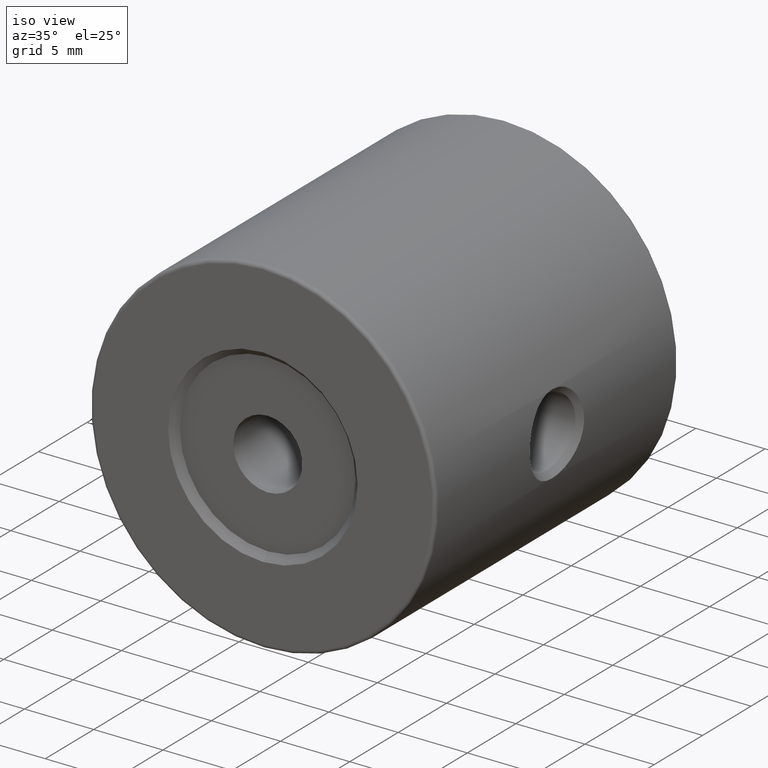
[diagram: clean part render]
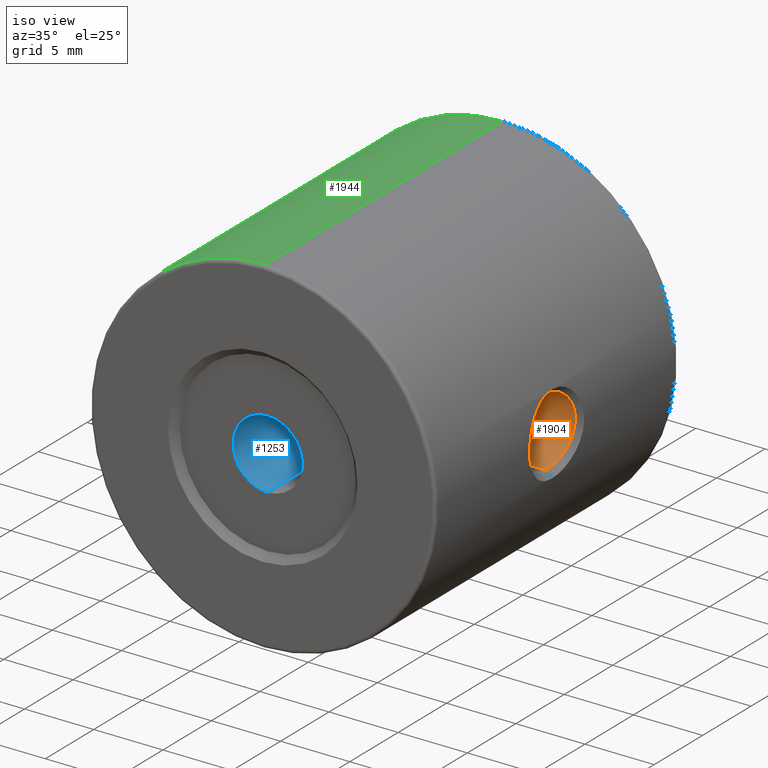
[diagram: same view with three faces highlighted in distinct colors, each labeled with its STEP entity id]
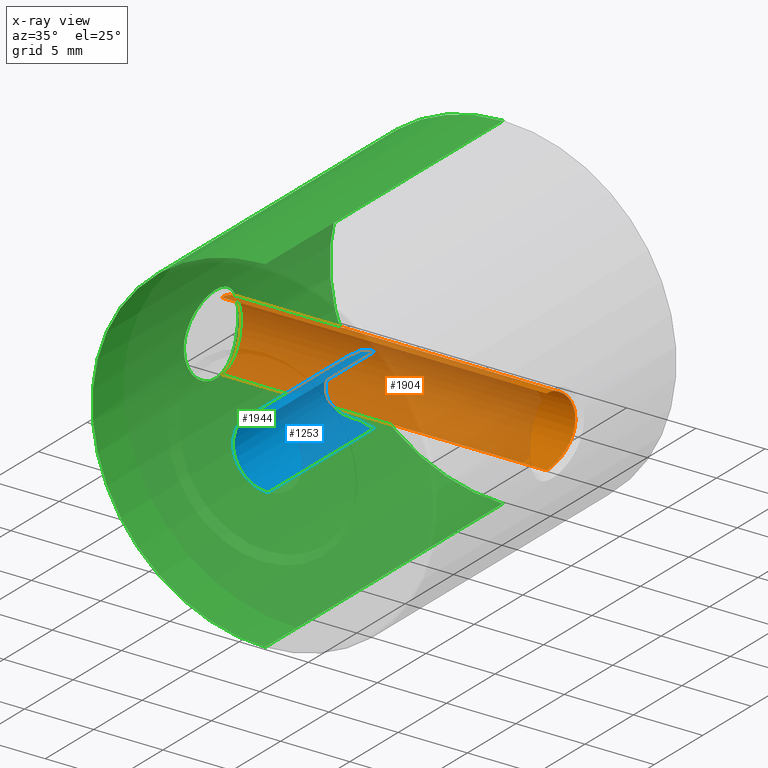
[diagram: x-ray of the same camera — body ghosted, the three highlighted faces saturated]
A machine part, iso view with three faces highlighted in distinct colors.
The next image is the same camera in x-ray (body ghosted, the three faces saturated) — at least one of them is partly hidden behind the body in this view.
Their STEP definitions:

[orange] entity #1904 — the highlighted cylindrical surface (partial cylindrical patch) has radius 2.5 mm, axis along (1, -0, -0).
#1 = CARTESIAN_POINT ( 'NONE',  ( -10.53658929593472138, 3.435006155326634225, 51.45027489283603472 ) ) ;
#12 = CARTESIAN_POINT ( 'NONE',  ( -10.75775277531309015, 1.400772240898692234, 52.49999872986310834 ) ) ;
#14 = CARTESIAN_POINT ( 'NONE',  ( -34.55337786558138191, 3.777108215715299977, 50.76993000480915441 ) ) ;
#15 = CYLINDRICAL_SURFACE ( 'NONE', #771, 2.500000000000002220 ) ;
#18 = CARTESIAN_POINT ( 'NONE',  ( -10.47228985999035089, 3.715187967750090525, 50.93925226523184335 ) ) ;
#36 = CARTESIAN_POINT ( 'NONE',  ( -10.61255753572117477, 3.045764872686626212, 51.88045600329541429 ) ) ;
#53 = CARTESIAN_POINT ( 'NONE',  ( -34.51577102830123067, 3.621698728317633176, 51.14371251332755008 ) ) ;
#56 = CARTESIAN_POINT ( 'NONE',  ( -10.51473777736165083, 3.534110035902946478, 51.29943219385440756 ) ) ;
#72 = CARTESIAN_POINT ( 'NONE',  ( -34.54369817821184796, 3.738018949567921023, 49.11913398801507924 ) ) ;
#75 = CARTESIAN_POINT ( 'NONE',  ( -10.53178313108949915, 3.457167416195394249, 51.41852374674527226 ) ) ;
#86 = CARTESIAN_POINT ( 'NONE',  ( -34.52236465314182112, 3.649729440710959505, 51.08800073522379392 ) ) ;
#88 = CARTESIAN_POINT ( 'NONE',  ( -34.52017690343055989, 3.640382294756729031, 48.89397580371844754 ) ) ;
#105 = CARTESIAN_POINT ( 'NONE',  ( -34.46584608861564902, 3.397542947977711059, 48.49891677664255951 ) ) ;
#120 = CARTESIAN_POINT ( 'NONE',  ( -10.75775312484085866, 1.398672224646476892, 52.50000000000002132 ) ) ;
#123 = CARTESIAN_POINT ( 'NONE',  ( -10.61969784651963700, 3.004503414530196537, 51.91573604598293201 ) ) ;
#141 = CARTESIAN_POINT ( 'NONE',  ( -10.72594683895604284, 2.168530309213374530, 52.37874403320898153 ) ) ;
#159 = CARTESIAN_POINT ( 'NONE',  ( -34.36439915012190482, 2.842708138876384627, 47.95936680339814728 ) ) ;
#162 = CARTESIAN_POINT ( 'NONE',  ( -10.67160018275315103, 2.665846511305314248, 52.15490737904902829 ) ) ;
#167 = ORIENTED_EDGE ( 'NONE', *, *, #2491, .T. ) ;
#177 = CARTESIAN_POINT ( 'NONE',  ( -34.25265052839080226, 1.398252184769063433, 52.50000002275201183 ) ) ;
#178 = CARTESIAN_POINT ( 'NONE',  ( -34.37590333120726172, 2.915794773481749314, 48.01286234900273087 ) ) ;
#199 = CARTESIAN_POINT ( 'NONE',  ( -10.69234182700365388, 2.502332762323333348, 47.75691348780209466 ) ) ;
#210 = CARTESIAN_POINT ( 'NONE',  ( -34.32972789659181245, 2.597037757422558268, 47.80606120173059992 ) ) ;
#214 = CARTESIAN_POINT ( 'NONE',  ( -34.25372203042129371, 1.560659625607133005, 52.49606844198029876 ) ) ;
#217 = CARTESIAN_POINT ( 'NONE',  ( -10.55978731339790322, 3.324144027088045572, 48.40596271062980804 ) ) ;
#229 = CARTESIAN_POINT ( 'NONE',  ( -34.35854923057382138, 2.804111315475371402, 47.93272002937693088 ) ) ;
#234 = CARTESIAN_POINT ( 'NONE',  ( -10.64511971509587163, 2.848657792398832100, 47.96333552459012850 ) ) ;
#250 = CARTESIAN_POINT ( 'NONE',  ( -34.41613788108610805, 3.147235597055346723, 51.78654533557758555 ) ) ;
#252 = CARTESIAN_POINT ( 'NONE',  ( -10.71238521261723520, 2.317432552050751937, 47.67501877044571046 ) ) ;
#268 = CARTESIAN_POINT ( 'NONE',  ( -10.62573172583954140, 2.968816210442954073, 48.05490762729050402 ) ) ;
#285 = CARTESIAN_POINT ( 'NONE',  ( -34.49285213742677314, 3.521659789324874446, 51.32016033935436639 ) ) ;
#288 = CARTESIAN_POINT ( 'NONE',  ( -10.52215786201730552, 3.500899096535798893, 51.35240099877466236 ) ) ;
#302 = CARTESIAN_POINT ( 'NONE',  ( -34.50880725685797046, 3.591694377612786315, 51.19969144280686635 ) ) ;
#306 = CARTESIAN_POINT ( 'NONE',  ( -10.43648446060348611, 3.858052394323864487, 50.44832193573772372 ) ) ;
#325 = CARTESIAN_POINT ( 'NONE',  ( -10.49467356482373681, 3.621523676001464853, 48.85594951957698839 ) ) ;
#337 = EDGE_CURVE ( 'NONE', #3402, #1257, #1572, .T. ) ;
#344 = CARTESIAN_POINT ( 'NONE',  ( -10.47640660499211940, 3.698224077249327113, 49.01991178301092589 ) ) ;
#358 = CARTESIAN_POINT ( 'NONE',  ( -10.48205551590016604, 3.674751804888622519, 48.96658403328918041 ) ) ;
#372 = CARTESIAN_POINT ( 'NONE',  ( -34.48798181167035182, 3.499709095062192521, 48.64575056965225031 ) ) ;
#374 = CARTESIAN_POINT ( 'NONE',  ( -10.67850231187596499, 2.613847822169839130, 52.18465594208841907 ) ) ;
#387 = CARTESIAN_POINT ( 'NONE',  ( -10.75775311712865445, 1.398252184769388951, 47.50000000000000000 ) ) ;
#408 = CARTESIAN_POINT ( 'NONE',  ( -10.75775306594705150, 1.399512273949568009, 52.49999978827980129 ) ) ;
#411 = CARTESIAN_POINT ( 'NONE',  ( -10.64573901249762855, 2.844430916668417186, 52.03941283699982989 ) ) ;
#425 = CARTESIAN_POINT ( 'NONE',  ( -10.75775289145710367, 1.400352262137122272, 52.49999915321134125 ) ) ;
#426 = CARTESIAN_POINT ( 'NONE',  ( -34.57893418755334380, 3.877465556909782674, 49.67562903278920317 ) ) ;
#429 = CARTESIAN_POINT ( 'NONE',  ( -10.62192216117861676, 2.991433434158972116, 51.92659701926658045 ) ) ;
#444 = CARTESIAN_POINT ( 'NONE',  ( -34.28731963629589075, 2.202316232205860036, 47.63248163846129302 ) ) ;
#459 = CARTESIAN_POINT ( 'NONE',  ( -34.35764467379194542, 2.798077697894730598, 47.92862186135381108 ) ) ;
#462 = CARTESIAN_POINT ( 'NONE',  ( -34.25828129528734678, 1.724039373447704859, 52.47902595956330885 ) ) ;
#476 = CARTESIAN_POINT ( 'NONE',  ( -34.43261872419688530, 3.233925465060507154, 48.30269162639008584 ) ) ;
#482 = CARTESIAN_POINT ( 'NONE',  ( -10.59815998889524558, 3.126107226020917285, 48.19304052234530644 ) ) ;
#495 = CARTESIAN_POINT ( 'NONE',  ( -34.38777286731758664, 2.987249506305629687, 48.06995074308373006 ) ) ;
#499 = CARTESIAN_POINT ( 'NONE',  ( -34.39480158161857304, 3.028510403209743185, 51.89576953602850296 ) ) ;
#502 = CARTESIAN_POINT ( 'NONE',  ( -10.53590965403808610, 3.438070091881015422, 48.55438621982123948 ) ) ;
#514 = CARTESIAN_POINT ( 'NONE',  ( -34.33624370788929525, 2.646806170903147404, 47.83401143112892129 ) ) ;
#517 = CARTESIAN_POINT ( 'NONE',  ( -34.37712870115655761, 2.923183177069705874, 51.98126396674344818 ) ) ;
#519 = CARTESIAN_POINT ( 'NONE',  ( -10.75775311712865623, 1.478895169680614075, 47.50000000000000711 ) ) ;
#534 = CARTESIAN_POINT ( 'NONE',  ( -34.29807699724858594, 2.318030296329272488, 52.32474586825979657 ) ) ;
#536 = CARTESIAN_POINT ( 'NONE',  ( -10.62827805860822572, 2.953539933339903722, 48.04262997200537200 ) ) ;
#556 = CARTESIAN_POINT ( 'NONE',  ( -10.46126713321734591, 3.760105976176915110, 50.82135131906920833 ) ) ;
#575 = CARTESIAN_POINT ( 'NONE',  ( -10.58375804988684976, 3.202955632804679542, 51.73020071059019642 ) ) ;
#586 = VERTEX_POINT ( 'NONE', #177 ) ;
#589 = CARTESIAN_POINT ( 'NONE',  ( -34.45748932519276053, 3.357772379174664756, 51.55315505963010025 ) ) ;
#592 = CARTESIAN_POINT ( 'NONE',  ( -10.54830106101549170, 3.379792021149554682, 51.52456859440680148 ) ) ;
#605 = CARTESIAN_POINT ( 'NONE',  ( -34.44657920401198226, 3.304266349219735055, 51.61777152094342824 ) ) ;
#608 = CARTESIAN_POINT ( 'NONE',  ( -10.61497147234010363, 3.031921984396925396, 51.89245589269300041 ) ) ;
#622 = CARTESIAN_POINT ( 'NONE',  ( -34.58436337322496001, 3.898250868283255066, 50.00256562447480491 ) ) ;
#623 = CARTESIAN_POINT ( 'NONE',  ( -34.55377552792147355, 3.778695768193335969, 49.23508877299096298 ) ) ;
#625 = CARTESIAN_POINT ( 'NONE',  ( -10.55675560199588503, 3.338960214639970392, 51.57597055683756793 ) ) ;
#637 = CARTESIAN_POINT ( 'NONE',  ( -34.58436337322496001, 3.898250868283255066, 50.00256562447480491 ) ) ;
#651 = CARTESIAN_POINT ( 'NONE',  ( -34.53799626503341358, 3.714705747835725269, 49.05955801837989583 ) ) ;
#672 = CARTESIAN_POINT ( 'NONE',  ( -34.45342034665506503, 3.337851177785145396, 48.42266475108284141 ) ) ;
#675 = CARTESIAN_POINT ( 'NONE',  ( -10.62866622019876495, 2.951544250994884155, 51.95942332555384269 ) ) ;
#694 = CARTESIAN_POINT ( 'NONE',  ( -10.65923473107763186, 2.754486190467200224, 52.10060455302391347 ) ) ;
#709 = CARTESIAN_POINT ( 'NONE',  ( -34.32261253375742882, 2.540665696718634514, 47.77588027149432293 ) ) ;
#711 = CARTESIAN_POINT ( 'NONE',  ( -10.68758540392553513, 2.542342441979126288, 52.22325597180674350 ) ) ;
#726 = CARTESIAN_POINT ( 'NONE',  ( -34.25265054498071038, 1.398252184769378959, 47.49999999999540989 ) ) ;
#731 = CARTESIAN_POINT ( 'NONE',  ( -10.57782312027836547, 3.233863439075777446, 48.30230010735316881 ) ) ;
#732 = ORIENTED_EDGE ( 'NONE', *, *, #2952, .T. ) ;
#742 = CARTESIAN_POINT ( 'NONE',  ( -34.44820663197441490, 3.312372979312022458, 48.39158897223911993 ) ) ;
#745 = CARTESIAN_POINT ( 'NONE',  ( -34.26149993960300577, 1.805777567640896031, 52.46690698300748323 ) ) ;
#756 = B_SPLINE_CURVE_WITH_KNOTS ( 'NONE', 3,
 ( #2643, #519, #2696, #1625, #3168, #3504, #2903, #2152, #803, #1326, #1813, #1360, #252, #1608, #1555, #2133, #199, #765, #1289, #1073, #2711, #3241, #1885, #2369, #3468, #2440, #3451, #234, #2976, #1020, #536, #268, #1309, #1001, #1591, #3486, #2099, #1342, #2115, #482, #2420, #2081, #731, #1573, #3185, #1830, #2921, #2660, #217, #2388, #1036, #3203, #1847, #502, #3223, #784, #1867, #2959, #2780, #1089, #2459, #3045, #2760, #325, #1642, #358, #1676, #344, #897, #2499, #1431, #2209, #1976, #3293, #863, #1377, #1125, #1449, #2225, #2170, #3257, #306, #821, #1161, #1413, #1901, #2993, #556, #2795, #3312, #18, #3028, #1711, #1143, #1921, #3329, #2517, #1394, #56, #880, #288, #1940, #2728, #75, #1, #2241, #592, #3064, #1106, #625, #2188, #3273, #841, #1958, #3010, #575, #1659, #2743, #2477, #36, #608, #1694, #123, #2005, #429, #1179, #2814, #675, #3362, #2258, #411, #3148, #1516, #2062, #694, #2604, #162, #2586, #374, #1776, #711, #2290, #2331, #1499, #2551, #1252, #2310, #3377, #141, #3345, #3093, #1725, #1194, #2883, #3396, #1231 ),
 .UNSPECIFIED., .F., .F.,
 ( 4, 2, 2, 2, 2, 1, 2, 2, 1, 2, 2, 2, 1, 2, 2, 2, 1, 1, 1, 2, 2, 2, 2, 2, 2, 2, 1, 2, 2, 2, 1, 2, 2, 2, 2, 2, 1, 2, 2, 2, 2, 2, 2, 2, 2, 2, 2, 2, 1, 2, 2, 1, 2, 2, 2, 1, 2, 2, 2, 1, 1, 2, 2, 2, 2, 2, 2, 2, 1, 1, 2, 2, 2, 1, 2, 2, 2, 2, 2, 1, 2, 2, 2, 2, 2, 2, 4 ),
 ( 0.0000000000000000000, 0.01562499999998637548, 0.03124999999997275096, 0.03906249999996606881, 0.04687499999995938665, 0.05468749999995271144, 0.05859374999994931832, 0.06249999999994591826, 0.07031249999993867406, 0.07421874999993476052, 0.07812499999993083311, 0.08593749999992232602, 0.08984374999991839861, 0.09179687499991648347, 0.09374999999991458222, 0.1015624999999077821, 0.1054687499999043820, 0.1074218749999027167, 0.1083984374999022171, 0.1088867187499016342, 0.1093749999999010653, 0.1171874999999044098, 0.1210937499999056449, 0.1249999999999068800, 0.1328124999999100442, 0.1367187499999115985, 0.1386718749999117373, 0.1396484374999111822, 0.1406249999999105993, 0.1484374999999043265, 0.1523437499999006906, 0.1542968749998994138, 0.1562499999998981093, 0.1640624999998949174, 0.1679687499998932798, 0.1718749999998916422, 0.1796874999998895328, 0.1835937499998878952, 0.1874999999998862577, 0.1953124999998841482, 0.2031249999998820666, 0.2187499999998778477, 0.2499999999998681055, 0.2656249999998632760, 0.2734374999998608335, 0.2812499999998583911, 0.2890624999998559486, 0.2968749999998535616, 0.3046874999998511191, 0.3085937499998505085, 0.3124999999998498423, 0.3203124999998499534, 0.3242187499998505085, 0.3281249999998511191, 0.3359374999998522848, 0.3398437499998534506, 0.3417968749998534506, 0.3437499999998534506, 0.3515624999998558375, 0.3554687499998564482, 0.3574218749998572808, 0.3583984374998581135, 0.3593749999998590017, 0.3671874999998632205, 0.3710937499998653855, 0.3749999999998674949, 0.3828124999998712696, 0.3867187499998730460, 0.3886718749998734901, 0.3896484374998742117, 0.3901367187498746558, 0.3906249999998750444, 0.3984374999998823719, 0.4023437499998864797, 0.4042968749998889777, 0.4062499999998915312, 0.4140624999999001354, 0.4179687499999047984, 0.4218749999999094058, 0.4296874999999186762, 0.4335937499999233946, 0.4374999999999281131, 0.4453124999999370504, 0.4531249999999459876, 0.4609374999999549805, 0.4687499999999639178, 0.5000000000000000000 ),
 .UNSPECIFIED. ) ;
#760 = CARTESIAN_POINT ( 'NONE',  ( -34.36814239115046377, 2.866752692583888873, 47.97665644373223870 ) ) ;
#765 = CARTESIAN_POINT ( 'NONE',  ( -10.68788471831998876, 2.539433060992924318, 47.77555911953638912 ) ) ;
#771 = AXIS2_PLACEMENT_3D ( 'NONE', #2514, #2438, #2741 ) ;
#777 = CARTESIAN_POINT ( 'NONE',  ( -34.38819594421737236, 2.989748358730691447, 48.07201074944931918 ) ) ;
#784 = CARTESIAN_POINT ( 'NONE',  ( -10.53001865074880428, 3.465178259728424415, 48.59361952037760091 ) ) ;
#803 = CARTESIAN_POINT ( 'NONE',  ( -10.73230878014613943, 2.087230713269383919, 47.59648392039453313 ) ) ;
#821 = CARTESIAN_POINT ( 'NONE',  ( -10.44050617183825658, 3.842400022360676903, 50.52702085061759618 ) ) ;
#837 = CARTESIAN_POINT ( 'NONE',  ( -34.56756822307433197, 3.833332788819759696, 50.57206592070166096 ) ) ;
#841 = CARTESIAN_POINT ( 'NONE',  ( -10.56657809085663402, 3.290784664091236156, 51.63401304755026899 ) ) ;
#858 = CARTESIAN_POINT ( 'NONE',  ( -34.42657149363610358, 3.202853141483528621, 51.73094316403741999 ) ) ;
#863 = CARTESIAN_POINT ( 'NONE',  ( -10.43026627197695433, 3.882253059674059426, 49.67256777598407069 ) ) ;
#877 = CARTESIAN_POINT ( 'NONE',  ( -34.50000485385447746, 3.553290457803862878, 51.26737162502899992 ) ) ;
#880 = CARTESIAN_POINT ( 'NONE',  ( -10.51837359182651888, 3.517933571058198261, 51.32579008398895581 ) ) ;
#895 = CARTESIAN_POINT ( 'NONE',  ( -34.58023691178213710, 3.882480711100935178, 49.71662314764943602 ) ) ;
#897 = CARTESIAN_POINT ( 'NONE',  ( -10.47051593469744724, 3.722504065064466516, 49.07824749847952006 ) ) ;
#911 = CARTESIAN_POINT ( 'NONE',  ( -34.50695619509281187, 3.583718661823267038, 48.78542191980041309 ) ) ;
#926 = CARTESIAN_POINT ( 'NONE',  ( -34.57390506594117596, 3.857997678078226578, 49.55136306853460582 ) ) ;
#945 = CARTESIAN_POINT ( 'NONE',  ( -34.45699076149889351, 3.355189985241224804, 48.44417053961495156 ) ) ;
#950 = VECTOR ( 'NONE', #2186, 1000.000000000000000 ) ;
#964 = CARTESIAN_POINT ( 'NONE',  ( -34.58436337322496001, 3.898250868283255066, 50.00256562447480491 ) ) ;
#997 = CARTESIAN_POINT ( 'NONE',  ( -34.39518996595738543, 3.030528576685263875, 48.10634144176987803 ) ) ;
#1001 = CARTESIAN_POINT ( 'NONE',  ( -10.62388814465176168, 2.979798253939118791, 48.06383882973953092 ) ) ;
#1014 = CARTESIAN_POINT ( 'NONE',  ( -34.36086175259308106, 2.819442343512391425, 47.94322949626830166 ) ) ;
#1020 = CARTESIAN_POINT ( 'NONE',  ( -10.63324832098946615, 2.923347842217401293, 48.01886132538962926 ) ) ;
#1034 = CARTESIAN_POINT ( 'NONE',  ( -34.32269212778913925, 2.540851447446065947, 52.22371342458428245 ) ) ;
#1036 = CARTESIAN_POINT ( 'NONE',  ( -10.55296637922095115, 3.357524876358701782, 48.44652055317448003 ) ) ;
#1048 = CARTESIAN_POINT ( 'NONE',  ( -34.26995450286284495, 1.966833508878385040, 47.56517006760056177 ) ) ;
#1051 = CARTESIAN_POINT ( 'NONE',  ( -34.27508428324641443, 2.045357825997798695, 52.41514413048619048 ) ) ;
#1073 = CARTESIAN_POINT ( 'NONE',  ( -10.67898984605596091, 2.610437434575099136, 47.81320628337162049 ) ) ;
#1086 = CARTESIAN_POINT ( 'NONE',  ( -34.33608617813745667, 2.645985465630450673, 52.16675172971824281 ) ) ;
#1089 = CARTESIAN_POINT ( 'NONE',  ( -10.51036542385616812, 3.553437408739181347, 48.73288016722053584 ) ) ;
#1103 = CARTESIAN_POINT ( 'NONE',  ( -34.50232215743842801, 3.563461913632058220, 51.24990526178648764 ) ) ;
#1106 = CARTESIAN_POINT ( 'NONE',  ( -10.55531889802341183, 3.345944087701068881, 51.56733120446111229 ) ) ;
#1125 = CARTESIAN_POINT ( 'NONE',  ( -10.42602248527437503, 3.898315734512980413, 50.07909685307397041 ) ) ;
#1143 = CARTESIAN_POINT ( 'NONE',  ( -10.49003806497988833, 3.641181918001433093, 51.10440038306784061 ) ) ;
#1161 = CARTESIAN_POINT ( 'NONE',  ( -10.44277018625809639, 3.833558039652739335, 50.56652604505660520 ) ) ;
#1166 = EDGE_CURVE ( 'NONE', #2510, #1362, #3258, .T. ) ;
#1177 = CARTESIAN_POINT ( 'NONE',  ( -34.51575700200420016, 3.621574355383758714, 48.85663851799758817 ) ) ;
#1179 = CARTESIAN_POINT ( 'NONE',  ( -10.62234100687279437, 2.988962205874714950, 51.92863791231237514 ) ) ;
#1192 = CARTESIAN_POINT ( 'NONE',  ( -34.46186240356259134, 3.378645102126074828, 48.47394285503958855 ) ) ;
#1194 = CARTESIAN_POINT ( 'NONE',  ( -10.74262275664474053, 1.930177161206423353, 52.44310909606979010 ) ) ;
#1231 = CARTESIAN_POINT ( 'NONE',  ( -10.75775277531309015, 1.400772240898692234, 52.49999872986310834 ) ) ;
#1250 = CARTESIAN_POINT ( 'NONE',  ( -34.43552205039608793, 3.248773438833176375, 48.31893139304249019 ) ) ;
#1252 = CARTESIAN_POINT ( 'NONE',  ( -10.71220122383512319, 2.319907301163726565, 52.32428643419788017 ) ) ;
#1257 = VERTEX_POINT ( 'NONE', #2268 ) ;
#1266 = CARTESIAN_POINT ( 'NONE',  ( -34.33858617187294726, 2.664240156161630679, 47.84414879106505225 ) ) ;
#1282 = CARTESIAN_POINT ( 'NONE',  ( -34.42332169514734375, 3.185531405363365653, 48.25173542476589006 ) ) ;
#1286 = CARTESIAN_POINT ( 'NONE',  ( -34.38425514537565419, 2.966316391689008736, 51.94710199271663242 ) ) ;
#1289 = CARTESIAN_POINT ( 'NONE',  ( -10.68536135105406792, 2.559892940763631053, 47.78618977467668572 ) ) ;
#1305 = CARTESIAN_POINT ( 'NONE',  ( -34.35488893522820320, 2.779496485291727659, 52.08380567105832171 ) ) ;
#1309 = CARTESIAN_POINT ( 'NONE',  ( -10.62462732574339164, 2.975400541801445975, 48.06025488632096199 ) ) ;
#1320 = CARTESIAN_POINT ( 'NONE',  ( -34.30394296115250086, 2.375711128245743708, 47.69891051549689109 ) ) ;
#1326 = CARTESIAN_POINT ( 'NONE',  ( -10.72636834715719800, 2.163316367278158125, 47.61960974747873365 ) ) ;
#1342 = CARTESIAN_POINT ( 'NONE',  ( -10.60750994316161666, 3.074333090331054841, 48.14496214669802754 ) ) ;
#1357 = CARTESIAN_POINT ( 'NONE',  ( -34.27804580035405735, 2.086575151996896693, 52.40370738585250621 ) ) ;
#1360 = CARTESIAN_POINT ( 'NONE',  ( -10.71611989040700585, 2.278727290038249365, 47.66008678486208794 ) ) ;
#1362 = VERTEX_POINT ( 'NONE', #387 ) ;
#1374 = CARTESIAN_POINT ( 'NONE',  ( -34.56256781750949614, 3.813732364840567435, 50.64996031630849416 ) ) ;
#1377 = CARTESIAN_POINT ( 'NONE',  ( -10.42607548033009657, 3.898122724173477938, 49.83585510696210008 ) ) ;
#1379 = EDGE_LOOP ( 'NONE', ( #1523, #1932, #167, #3506, #732, #3031 ) ) ;
#1394 = CARTESIAN_POINT ( 'NONE',  ( -10.50766408939979257, 3.565365691849903929, 51.24710472460241562 ) ) ;
#1413 = CARTESIAN_POINT ( 'NONE',  ( -10.44780453270269049, 3.813763724046194348, 50.64573242924388552 ) ) ;
#1427 = CARTESIAN_POINT ( 'NONE',  ( -34.45094144038500872, 3.325738783183400660, 51.59211394682576213 ) ) ;
#1431 = CARTESIAN_POINT ( 'NONE',  ( -10.45998422922923154, 3.765243383561329704, 49.19437025681892806 ) ) ;
#1444 = CARTESIAN_POINT ( 'NONE',  ( -34.48781591890710274, 3.499084047547301957, 51.35587356931377911 ) ) ;
#1446 = CARTESIAN_POINT ( 'NONE',  ( -34.53249561006611401, 3.692039406730776019, 49.00496577801974496 ) ) ;
#1449 = CARTESIAN_POINT ( 'NONE',  ( -10.42705158325908243, 3.894432946978842569, 50.16070950317541843 ) ) ;
#1462 = CARTESIAN_POINT ( 'NONE',  ( -34.48542199940760611, 3.488133907627409158, 48.62795515748260300 ) ) ;
#1480 = CARTESIAN_POINT ( 'NONE',  ( -34.58335677791711760, 3.894452884664744818, 49.83950915355686817 ) ) ;
#1499 = CARTESIAN_POINT ( 'NONE',  ( -10.70443588610295116, 2.394827889974890045, 52.29286643723208527 ) ) ;
#1513 = CARTESIAN_POINT ( 'NONE',  ( -10.75775312123389682, 1.398252184769396056, 52.49999999860907707 ) ) ;
#1514 = CARTESIAN_POINT ( 'NONE',  ( -34.54901993731348142, 3.759636630981272098, 49.17730288338823641 ) ) ;
#1516 = CARTESIAN_POINT ( 'NONE',  ( -10.65159541338161020, 2.805837286584337065, 52.06610518278517219 ) ) ;
#1522 = VECTOR ( 'NONE', #3339, 1000.000000000000000 ) ;
#1523 = ORIENTED_EDGE ( 'NONE', *, *, #2168, .F. ) ;
#1533 = CARTESIAN_POINT ( 'NONE',  ( -34.27801529105191491, 2.086261137826711298, 47.59617280642536485 ) ) ;
#1549 = CARTESIAN_POINT ( 'NONE',  ( -34.25265054498071038, 1.398252184769378959, 47.49999999999540989 ) ) ;
#1552 = CARTESIAN_POINT ( 'NONE',  ( -34.26991302517363636, 1.966150412366024502, 52.43498634185579022 ) ) ;
#1555 = CARTESIAN_POINT ( 'NONE',  ( -10.70476268514649121, 2.392250165626945702, 47.70577093960293524 ) ) ;
#1566 = CARTESIAN_POINT ( 'NONE',  ( -34.38884296433702303, 2.993564852752338190, 48.07516311317973390 ) ) ;
#1569 = CARTESIAN_POINT ( 'NONE',  ( -34.26758693008573431, 1.926671815424718215, 52.44384497077900420 ) ) ;
#1572 = B_SPLINE_CURVE_WITH_KNOTS ( 'NONE', 3,
 ( #2362, #425, #408, #120, #1513 ),
 .UNSPECIFIED., .F., .F.,
 ( 4, 1, 4 ),
 ( 0.5000000000000000000, 0.5000808699276416691, 0.5001617398552833382 ),
 .UNSPECIFIED. ) ;
#1573 = CARTESIAN_POINT ( 'NONE',  ( -10.56979142712622455, 3.274545867626841300, 48.34774837985354878 ) ) ;
#1586 = CARTESIAN_POINT ( 'NONE',  ( -34.34582147387619955, 2.716998223988638106, 47.87571452032739217 ) ) ;
#1589 = CARTESIAN_POINT ( 'NONE',  ( -34.40292642917790999, 3.074516548038075836, 51.85487433066689533 ) ) ;
#1591 = CARTESIAN_POINT ( 'NONE',  ( -10.62334915145952863, 2.982996198437806168, 48.06645691304566981 ) ) ;
#1606 = CARTESIAN_POINT ( 'NONE',  ( -34.38208088998037226, 2.953269912434114186, 51.95758413944095366 ) ) ;
#1608 = CARTESIAN_POINT ( 'NONE',  ( -10.71030778668220051, 2.338251845968980724, 47.68336874344998932 ) ) ;
#1623 = CARTESIAN_POINT ( 'NONE',  ( -34.30016066776104111, 2.338896842652930630, 52.31637011544876259 ) ) ;
#1625 = CARTESIAN_POINT ( 'NONE',  ( -10.75242780081261174, 1.722847840886650994, 47.51981399015357965 ) ) ;
#1639 = CARTESIAN_POINT ( 'NONE',  ( -34.44970727494351337, 3.319682574710927980, 51.59941220978912924 ) ) ;
#1642 = CARTESIAN_POINT ( 'NONE',  ( -10.48808776788176367, 3.649523439088665278, 48.91157680470856661 ) ) ;
#1659 = CARTESIAN_POINT ( 'NONE',  ( -10.58680048196472256, 3.187015570641586137, 51.74674765687403521 ) ) ;
#1673 = CARTESIAN_POINT ( 'NONE',  ( -34.55037290243139836, 3.765055916461096608, 50.80616473617288165 ) ) ;
#1676 = CARTESIAN_POINT ( 'NONE',  ( -10.47815702457030440, 3.690975689957600725, 49.00309578724267112 ) ) ;
#1688 = EDGE_CURVE ( 'NONE', #586, #2319, #2347, .T. ) ;
#1694 = CARTESIAN_POINT ( 'NONE',  ( -10.61818952971818319, 3.013288210498589414, 51.90833047861152494 ) ) ;
#1711 = CARTESIAN_POINT ( 'NONE',  ( -10.48362473782626303, 3.668293309218001674, 51.04873908171499863 ) ) ;
#1725 = CARTESIAN_POINT ( 'NONE',  ( -10.74033125497380148, 1.968770040965731605, 52.43437863031153512 ) ) ;
#1774 = CARTESIAN_POINT ( 'NONE',  ( -34.58438561327193383, 3.898334264179342146, 49.92130290170502604 ) ) ;
#1776 = CARTESIAN_POINT ( 'NONE',  ( -10.68047853276402570, 2.598575359166927612, 52.19309750927961744 ) ) ;
#1791 = CARTESIAN_POINT ( 'NONE',  ( -34.39761002006302704, 3.044417719575021941, 48.11836436477278056 ) ) ;
#1813 = CARTESIAN_POINT ( 'NONE',  ( -10.72153079176783486, 2.220792733291343968, 47.63856652003732961 ) ) ;
#1825 = CARTESIAN_POINT ( 'NONE',  ( -34.40566408765987916, 3.090010174784834529, 48.15891080330843010 ) ) ;
#1827 = CARTESIAN_POINT ( 'NONE',  ( -34.31168622883786412, 2.447977223187536744, 52.26958429966892083 ) ) ;
#1830 = CARTESIAN_POINT ( 'NONE',  ( -10.56391064306462368, 3.303839945411627177, 48.38172606697145994 ) ) ;
#1845 = CARTESIAN_POINT ( 'NONE',  ( -34.25264969898023537, 1.479168739983915293, 52.50000000000001421 ) ) ;
#1847 = CARTESIAN_POINT ( 'NONE',  ( -10.53966556760309459, 3.420558592488067262, 48.53006894739305466 ) ) ;
#1862 = CARTESIAN_POINT ( 'NONE',  ( -34.38144323524463886, 2.949763339004216167, 48.03916816233313369 ) ) ;
#1865 = CARTESIAN_POINT ( 'NONE',  ( -34.35078610549842182, 2.751384864681336584, 52.10217632155296741 ) ) ;
#1867 = CARTESIAN_POINT ( 'NONE',  ( -10.52907118884673565, 3.469515327544006933, 48.60000513654498633 ) ) ;
#1885 = CARTESIAN_POINT ( 'NONE',  ( -10.66355808636940061, 2.724000046128503882, 47.88028934360172428 ) ) ;
#1899 = LINE ( 'NONE', #2456, #950 ) ;
#1901 = CARTESIAN_POINT ( 'NONE',  ( -10.45068180356089727, 3.802385365944963347, 50.68683908686955419 ) ) ;
#1904 = ADVANCED_FACE ( 'NONE', ( #3310 ), #15, .F. ) ;
#1918 = CARTESIAN_POINT ( 'NONE',  ( -34.50682289415572512, 3.583092677598151088, 51.21526472601605917 ) ) ;
#1921 = CARTESIAN_POINT ( 'NONE',  ( -10.49443793112157763, 3.622465759680236541, 51.14162514317052199 ) ) ;
#1932 = ORIENTED_EDGE ( 'NONE', *, *, #1688, .T. ) ;
#1935 = CARTESIAN_POINT ( 'NONE',  ( -34.54356796060503143, 3.737516586839153110, 50.88289497869658362 ) ) ;
#1940 = CARTESIAN_POINT ( 'NONE',  ( -10.52471369897247477, 3.489348258723697249, 51.37019330991665811 ) ) ;
#1958 = CARTESIAN_POINT ( 'NONE',  ( -10.57466531684622701, 3.249874824940805595, 51.67985506952765462 ) ) ;
#1973 = CARTESIAN_POINT ( 'NONE',  ( -34.53407786932675094, 3.698557997497270211, 50.97930073136862461 ) ) ;
#1976 = CARTESIAN_POINT ( 'NONE',  ( -10.44776976456417827, 3.813993415946427934, 49.35102538161582686 ) ) ;
#1988 = CARTESIAN_POINT ( 'NONE',  ( -34.50249771987699887, 3.564307096626514237, 48.75105678486000471 ) ) ;
#2003 = CARTESIAN_POINT ( 'NONE',  ( -34.56986290510832305, 3.842265132169373931, 49.47234130247947093 ) ) ;
#2005 = CARTESIAN_POINT ( 'NONE',  ( -10.62128130365141310, 2.995209600828010910, 51.92347243009041335 ) ) ;
#2062 = CARTESIAN_POINT ( 'NONE',  ( -10.65249293293447863, 2.799858131135651629, 52.07017394353965756 ) ) ;
#2076 = CARTESIAN_POINT ( 'NONE',  ( -34.30574384667919929, 2.392730145292477406, 47.70622247539002103 ) ) ;
#2081 = CARTESIAN_POINT ( 'NONE',  ( -10.58398987594494933, 3.202030748831197204, 48.26819460339383028 ) ) ;
#2099 = CARTESIAN_POINT ( 'NONE',  ( -10.61555385987215239, 3.028785299062651593, 48.10447571371938125 ) ) ;
#2113 = CARTESIAN_POINT ( 'NONE',  ( -34.38671495544900125, 2.980983265092108425, 51.93519311266871341 ) ) ;
#2115 = CARTESIAN_POINT ( 'NONE',  ( -10.60456743008027303, 3.090805283793685021, 48.15993217395452319 ) ) ;
#2127 = CARTESIAN_POINT ( 'NONE',  ( -34.41209200643095301, 3.125665188325224886, 48.19189921058353576 ) ) ;
#2133 = CARTESIAN_POINT ( 'NONE',  ( -10.69883739644751586, 2.446902964219067389, 47.72992432399967555 ) ) ;
#2150 = CARTESIAN_POINT ( 'NONE',  ( -34.25694026223883526, 1.683161598267135739, 52.48405114421437645 ) ) ;
#2152 = CARTESIAN_POINT ( 'NONE',  ( -10.73534138326079912, 2.045066429621686055, 47.58477174512800190 ) ) ;
#2168 = EDGE_CURVE ( 'NONE', #586, #1257, #1899, .T. ) ;
#2170 = CARTESIAN_POINT ( 'NONE',  ( -10.43146499598587873, 3.877481800831424241, 50.32423554543064625 ) ) ;
#2185 = CARTESIAN_POINT ( 'NONE',  ( -34.53230527916861092, 3.691218907221615275, 50.99634521866194348 ) ) ;
#2186 = DIRECTION ( 'NONE',  ( 1.000000000000000000, -0.0000000000000000000, -0.0000000000000000000 ) ) ;
#2188 = CARTESIAN_POINT ( 'NONE',  ( -10.55773550570406449, 3.334181606825506794, 51.58183139331971034 ) ) ;
#2206 = CARTESIAN_POINT ( 'NONE',  ( -34.58431891779279965, 3.898084168968127372, 50.16500095842730644 ) ) ;
#2209 = CARTESIAN_POINT ( 'NONE',  ( -10.45693435472678878, 3.777473808941984146, 49.23120360244182336 ) ) ;
#2221 = CARTESIAN_POINT ( 'NONE',  ( -34.46296856651034091, 3.383991984278655885, 51.51937197561389326 ) ) ;
#2225 = CARTESIAN_POINT ( 'NONE',  ( -10.43016537474106364, 3.882484663468924957, 50.28332927360803239 ) ) ;
#2241 = CARTESIAN_POINT ( 'NONE',  ( -10.54431162559056823, 3.398706502495287385, 51.49953276824304993 ) ) ;
#2256 = CARTESIAN_POINT ( 'NONE',  ( -34.51324721833071862, 3.610824642195484380, 48.83600299422792546 ) ) ;
#2258 = CARTESIAN_POINT ( 'NONE',  ( -10.64199037483500376, 2.868482314852573989, 52.02208733020435716 ) ) ;
#2268 = CARTESIAN_POINT ( 'NONE',  ( -10.75775312123389682, 1.398252184769396056, 52.49999999860907707 ) ) ;
#2290 = CARTESIAN_POINT ( 'NONE',  ( -10.69431024340464020, 2.486468489925100833, 52.25137420493506113 ) ) ;
#2310 = CARTESIAN_POINT ( 'NONE',  ( -10.71593139897400349, 2.281339582546815237, 52.33919193000294712 ) ) ;
#2319 = VERTEX_POINT ( 'NONE', #637 ) ;
#2331 = CARTESIAN_POINT ( 'NONE',  ( -10.70046203536010765, 2.431367238261012531, 52.27663631734192506 ) ) ;
#2346 = CARTESIAN_POINT ( 'NONE',  ( -34.39043951133952959, 3.002945016024251679, 48.08295802136796482 ) ) ;
#2347 = B_SPLINE_CURVE_WITH_KNOTS ( 'NONE', 3,
 ( #2418, #1845, #214, #2150, #462, #745, #2402, #1569, #1552, #1051, #1357, #2974, #2709, #3502, #534, #1623, #3221, #1827, #2437, #1034, #3518, #2918, #1086, #2957, #2939, #1865, #2639, #1305, #2366, #2386, #3163, #517, #1606, #1286, #2693, #2113, #3201, #499, #1589, #2676, #3484, #250, #858, #2529, #3061, #3024, #605, #2776, #1639, #2496, #1427, #589, #2221, #2725, #3326, #3308, #2455, #3254, #1444, #285, #877, #1103, #1918, #302, #53, #86, #2791, #2185, #1973, #2990, #1935, #1673, #14, #1374, #837, #3270, #2206, #622 ),
 .UNSPECIFIED., .F., .F.,
 ( 4, 2, 2, 2, 2, 2, 1, 2, 2, 1, 2, 2, 2, 1, 2, 2, 2, 1, 1, 2, 2, 2, 2, 2, 2, 2, 1, 2, 2, 2, 1, 2, 2, 2, 2, 2, 1, 2, 2, 2, 2, 2, 4 ),
 ( 0.2501157360126655682, 0.2657335025118637284, 0.2735423857614627252, 0.2813512690110617220, 0.2891601522606607189, 0.2969690355102597712, 0.3047779187598587680, 0.3086823603846582387, 0.3125868020094577648, 0.3203956852590572613, 0.3243001268838570095, 0.3282045685086567577, 0.3360134517582553659, 0.3399178933830543925, 0.3418701141954538780, 0.3438223350078533636, 0.3516312182574516942, 0.3555356598822508318, 0.3574878806946500398, 0.3584639911008500324, 0.3594401015070500249, 0.3672489847566575705, 0.3711534263814609269, 0.3750578680062642833, 0.3828667512558702191, 0.3867711928806736310, 0.3887234136930748374, 0.3896995240992758847, 0.3906756345054769319, 0.3984845177550851991, 0.4023889593798888331, 0.4043411801922905391, 0.4062934010046922451, 0.4141022842542999571, 0.4180067258791044793, 0.4219111675039090015, 0.4297200507535170466, 0.4336244923783209582, 0.4375289340031249252, 0.4453378172527340251, 0.4531467005023430694, 0.4687644670015624904, 0.5000000000000000000 ),
 .UNSPECIFIED. ) ;
#2362 = CARTESIAN_POINT ( 'NONE',  ( -10.75775277531309015, 1.400772240898692234, 52.49999872986310834 ) ) ;
#2363 = CARTESIAN_POINT ( 'NONE',  ( -34.27515475477472506, 2.046380977628800224, 47.58512721045177329 ) ) ;
#2366 = CARTESIAN_POINT ( 'NONE',  ( -34.36046448217002336, 2.817120072403195508, 52.05867049252812961 ) ) ;
#2369 = CARTESIAN_POINT ( 'NONE',  ( -10.65969737157847419, 2.750831973515017737, 47.89746761160560595 ) ) ;
#2383 = CARTESIAN_POINT ( 'NONE',  ( -34.33169738662353865, 2.612276421242332169, 47.81447061561118517 ) ) ;
#2386 = CARTESIAN_POINT ( 'NONE',  ( -34.36529390643632098, 2.848719826838542968, 52.03661785213325430 ) ) ;
#2388 = CARTESIAN_POINT ( 'NONE',  ( -10.55957662423657872, 3.325178140342371691, 48.40720737076834013 ) ) ;
#2399 = CARTESIAN_POINT ( 'NONE',  ( -34.29798120410805495, 2.317666568573460317, 47.67482637243039534 ) ) ;
#2402 = CARTESIAN_POINT ( 'NONE',  ( -34.26345380780683314, 1.848082027014409379, 52.45952407190689826 ) ) ;
#2418 = CARTESIAN_POINT ( 'NONE',  ( -34.25265052839080226, 1.398252184769063433, 52.50000002275201183 ) ) ;
#2420 = CARTESIAN_POINT ( 'NONE',  ( -10.59445844979258489, 3.146199053747460006, 48.21243923090696626 ) ) ;
#2437 = CARTESIAN_POINT ( 'NONE',  ( -34.31821333558750098, 2.503614424489207124, 52.24245597253260343 ) ) ;
#2438 = DIRECTION ( 'NONE',  ( 1.000000000000000000, -0.0000000000000000000, -0.0000000000000000000 ) ) ;
#2440 = CARTESIAN_POINT ( 'NONE',  ( -10.65554558621587766, 2.779286966446550267, 47.91605539503084543 ) ) ;
#2455 = CARTESIAN_POINT ( 'NONE',  ( -34.48024853829031855, 3.464553031657230164, 51.40729843793330645 ) ) ;
#2456 = CARTESIAN_POINT ( 'NONE',  ( -35.00520183104453764, 1.398252184769388728, 52.50000000000000711 ) ) ;
#2459 = CARTESIAN_POINT ( 'NONE',  ( -10.50806148965819453, 3.563549575399475255, 48.75024839451469916 ) ) ;
#2477 = CARTESIAN_POINT ( 'NONE',  ( -10.60451003076376075, 3.091284809330036687, 51.83991627007458192 ) ) ;
#2491 = EDGE_CURVE ( 'NONE', #2319, #2510, #2839, .T. ) ;
#2496 = CARTESIAN_POINT ( 'NONE',  ( -34.45068667024363407, 3.324488735377430615, 51.59362069242185811 ) ) ;
#2499 = CARTESIAN_POINT ( 'NONE',  ( -10.46683874819189697, 3.737504584614664171, 49.11705898947063531 ) ) ;
#2510 = VERTEX_POINT ( 'NONE', #1549 ) ;
#2514 = CARTESIAN_POINT ( 'NONE',  ( -35.00520183104453764, 1.398252184769388506, 50.00000000000000000 ) ) ;
#2517 = CARTESIAN_POINT ( 'NONE',  ( -10.50321221871572774, 3.584739730732580565, 51.21273860971531633 ) ) ;
#2529 = CARTESIAN_POINT ( 'NONE',  ( -34.43271705920287928, 3.234563490056065582, 51.69693926516925586 ) ) ;
#2531 = CARTESIAN_POINT ( 'NONE',  ( -34.52661855604139163, 3.667621899548791475, 48.94979994725028405 ) ) ;
#2548 = CARTESIAN_POINT ( 'NONE',  ( -34.47355744786256793, 3.433811561648631105, 48.54805109580944844 ) ) ;
#2551 = CARTESIAN_POINT ( 'NONE',  ( -10.70622746958932225, 2.377934763026788634, 52.30014367840401235 ) ) ;
#2565 = CARTESIAN_POINT ( 'NONE',  ( -34.47835700621493515, 3.455955106657708331, 48.57972021483046632 ) ) ;
#2586 = CARTESIAN_POINT ( 'NONE',  ( -10.67394748181954078, 2.648398513644619090, 52.16507009017467311 ) ) ;
#2601 = CARTESIAN_POINT ( 'NONE',  ( -34.25694543538727288, 1.724468045769405267, 47.51579507651413792 ) ) ;
#2604 = CARTESIAN_POINT ( 'NONE',  ( -10.66434863343946304, 2.718656590239609372, 52.12325621671035236 ) ) ;
#2620 = CARTESIAN_POINT ( 'NONE',  ( -34.25265066273421155, 1.560402683476740604, 47.50000000000000711 ) ) ;
#2636 = CARTESIAN_POINT ( 'NONE',  ( -34.28425718424882263, 2.166107220688898050, 47.62047480789361487 ) ) ;
#2639 = CARTESIAN_POINT ( 'NONE',  ( -34.35338147968709421, 2.769239204486761086, 52.09057597998973677 ) ) ;
#2643 = CARTESIAN_POINT ( 'NONE',  ( -10.75775311712865445, 1.398252184769388951, 47.50000000000000000 ) ) ;
#2654 = CARTESIAN_POINT ( 'NONE',  ( -34.31588000979823505, 2.484643514848381418, 47.74774139935365014 ) ) ;
#2660 = CARTESIAN_POINT ( 'NONE',  ( -10.56077055048850077, 3.319318282561245947, 48.40015022076229201 ) ) ;
#2673 = CARTESIAN_POINT ( 'NONE',  ( -34.30972174415177278, 2.429380409419730213, 47.72246266096438205 ) ) ;
#2676 = CARTESIAN_POINT ( 'NONE',  ( -34.40589806358534020, 3.091149904784283642, 51.83975389265558675 ) ) ;
#2693 = CARTESIAN_POINT ( 'NONE',  ( -34.38571617980726813, 2.975046749021307058, 51.94003877002732139 ) ) ;
#2696 = CARTESIAN_POINT ( 'NONE',  ( -10.75668805386544946, 1.560100067682766989, 47.50390500056497700 ) ) ;
#2709 = CARTESIAN_POINT ( 'NONE',  ( -34.28887652143663445, 2.220855473628773780, 52.36141853907830779 ) ) ;
#2711 = CARTESIAN_POINT ( 'NONE',  ( -10.67446526845029453, 2.644881528601944698, 47.83260920290705087 ) ) ;
#2725 = CARTESIAN_POINT ( 'NONE',  ( -34.47067577738607014, 3.420266628285845378, 51.47033024457768846 ) ) ;
#2728 = CARTESIAN_POINT ( 'NONE',  ( -10.52620299368964218, 3.482587794049769592, 51.38044518716904463 ) ) ;
#2741 = DIRECTION ( 'NONE',  ( 0.0000000000000000000, 0.0000000000000000000, -1.000000000000000000 ) ) ;
#2743 = CARTESIAN_POINT ( 'NONE',  ( -10.59807076732464282, 3.126980561815827286, 51.80684960860661192 ) ) ;
#2760 = CARTESIAN_POINT ( 'NONE',  ( -10.50162839173930251, 3.591555904536011479, 48.80005595995970680 ) ) ;
#2776 = CARTESIAN_POINT ( 'NONE',  ( -34.44820020498713120, 3.312275495858032492, 51.60829794766060985 ) ) ;
#2780 = CARTESIAN_POINT ( 'NONE',  ( -10.51747623926483044, 3.521995248815097845, 48.68038661764855135 ) ) ;
#2791 = CARTESIAN_POINT ( 'NONE',  ( -34.52840305807841759, 3.674981101397534200, 51.03291123781911409 ) ) ;
#2793 = CARTESIAN_POINT ( 'NONE',  ( -34.54002452358993480, 3.723024222460554089, 49.08028894891096883 ) ) ;
#2795 = CARTESIAN_POINT ( 'NONE',  ( -10.46658545540365104, 3.738506329210840473, 50.87957062683075549 ) ) ;
#2812 = CARTESIAN_POINT ( 'NONE',  ( -34.49177194386624024, 3.516779192457796910, 48.67236566850536406 ) ) ;
#2814 = CARTESIAN_POINT ( 'NONE',  ( -10.62237732879240504, 2.988748929443708402, 51.92881521574157944 ) ) ;
#2828 = CARTESIAN_POINT ( 'NONE',  ( -34.48392976939008747, 3.481356259995689761, 48.61769724347111321 ) ) ;
#2839 = B_SPLINE_CURVE_WITH_KNOTS ( 'NONE', 3,
 ( #964, #1774, #1480, #895, #426, #3343, #926, #2003, #3375, #3062, #3091, #623, #1514, #72, #2793, #651, #1446, #2531, #88, #1177, #2256, #911, #1988, #3078, #2812, #372, #1462, #2828, #2565, #2548, #105, #1192, #945, #3110, #672, #2881, #742, #3426, #1250, #476, #3217, #1282, #2127, #1825, #1791, #997, #2915, #2346, #1566, #777, #495, #2898, #1862, #178, #760, #159, #1014, #229, #459, #2954, #1586, #1266, #514, #2383, #210, #709, #2654, #2673, #2076, #1320, #2399, #3480, #444, #2636, #1533, #2363, #1048, #3161, #2601, #2620, #726 ),
 .UNSPECIFIED., .F., .F.,
 ( 4, 2, 2, 2, 2, 2, 1, 2, 2, 1, 2, 2, 2, 1, 2, 2, 2, 1, 1, 2, 2, 2, 2, 2, 2, 2, 1, 1, 2, 2, 2, 1, 2, 2, 2, 2, 2, 1, 2, 2, 2, 2, 2, 2, 4 ),
 ( 0.5000000000000000000, 0.5156264305114763857, 0.5234396457672144676, 0.5312528610229526604, 0.5390660762786908533, 0.5468792915344290462, 0.5546925067901671280, 0.5585991144180363355, 0.5625057220459054319, 0.5703189373016425145, 0.5742255449295110559, 0.5781321525573795972, 0.5859453678131164578, 0.5898519754409849991, 0.5918052792549186591, 0.5937585830688523192, 0.6015717983245909561, 0.6054784059524603856, 0.6074317097663950449, 0.6084083616733628741, 0.6093850135803307033, 0.6171982288360730040, 0.6211048364639446540, 0.6250114440918164149, 0.6328246593475590487, 0.6367312669754306986, 0.6386845707893666901, 0.6396612226963347414, 0.6401495486498187670, 0.6406378746033026816, 0.6484510898590369887, 0.6523576974869045308, 0.6543110013008379688, 0.6562643051147712958, 0.6640775203705061580, 0.6679841279983735891, 0.6718907356262411312, 0.6797039508819759934, 0.6836105585098435355, 0.6875171661377109666, 0.6953303813934466060, 0.7031435966491821343, 0.7109568119049176627, 0.7187700271606533020, 0.7500228881835950823 ),
 .UNSPECIFIED. ) ;
#2881 = CARTESIAN_POINT ( 'NONE',  ( -34.45244905415051306, 3.333112005435854730, 48.41686050238558181 ) ) ;
#2883 = CARTESIAN_POINT ( 'NONE',  ( -10.75338199211862467, 1.726486270663550204, 52.48392474897306670 ) ) ;
#2898 = CARTESIAN_POINT ( 'NONE',  ( -34.38771819878391511, 2.986927456129918390, 48.06968425288417990 ) ) ;
#2903 = CARTESIAN_POINT ( 'NONE',  ( -10.74055264803362597, 1.965160418879045690, 47.56477696204752448 ) ) ;
#2915 = CARTESIAN_POINT ( 'NONE',  ( -34.39195683743882626, 3.011790602147625506, 48.09040291832659619 ) ) ;
#2918 = CARTESIAN_POINT ( 'NONE',  ( -34.33157960056094282, 2.611711056594054892, 52.18608434738704460 ) ) ;
#2921 = CARTESIAN_POINT ( 'NONE',  ( -10.56228348238525250, 3.311881166349795347, 48.39123262874423403 ) ) ;
#2939 = CARTESIAN_POINT ( 'NONE',  ( -34.34694435702547111, 2.724696208876419057, 52.11927320865954982 ) ) ;
#2952 = EDGE_CURVE ( 'NONE', #1362, #3402, #756, .T. ) ;
#2954 = CARTESIAN_POINT ( 'NONE',  ( -34.35092222194816003, 2.752779821062993459, 47.89829672649906911 ) ) ;
#2957 = CARTESIAN_POINT ( 'NONE',  ( -34.34325654698272245, 2.698307815751011418, 52.13547844895570904 ) ) ;
#2959 = CARTESIAN_POINT ( 'NONE',  ( -10.52248213329029980, 3.499559375216314994, 48.64487119414858540 ) ) ;
#2974 = CARTESIAN_POINT ( 'NONE',  ( -34.28401376549513202, 2.163067110285118666, 52.38047386747328460 ) ) ;
#2976 = CARTESIAN_POINT ( 'NONE',  ( -10.63729871190578358, 2.898126532841093450, 47.99980086166242188 ) ) ;
#2990 = CARTESIAN_POINT ( 'NONE',  ( -34.53991951119301973, 3.722633376761947499, 50.92141146749231240 ) ) ;
#2993 = CARTESIAN_POINT ( 'NONE',  ( -10.45651490754843138, 3.779148862534476461, 50.76350199337551317 ) ) ;
#3010 = CARTESIAN_POINT ( 'NONE',  ( -10.57756216025295970, 3.235068673057138078, 51.69607022927458928 ) ) ;
#3024 = CARTESIAN_POINT ( 'NONE',  ( -34.44318529403670937, 3.287420730698568327, 51.63748006440253135 ) ) ;
#3028 = CARTESIAN_POINT ( 'NONE',  ( -10.47777082684939032, 3.692608870392770193, 50.99371643839346291 ) ) ;
#3031 = ORIENTED_EDGE ( 'NONE', *, *, #337, .T. ) ;
#3045 = CARTESIAN_POINT ( 'NONE',  ( -10.50358629647210584, 3.583068483794107806, 48.78469361690212480 ) ) ;
#3061 = CARTESIAN_POINT ( 'NONE',  ( -34.44072014335322507, 3.275087769982776287, 51.65163516127984167 ) ) ;
#3062 = CARTESIAN_POINT ( 'NONE',  ( -34.56252324084479000, 3.813464430357043966, 49.35313806840423467 ) ) ;
#3064 = CARTESIAN_POINT ( 'NONE',  ( -10.55317987588931672, 3.356315340068177999, 51.55441317493193054 ) ) ;
#3078 = CARTESIAN_POINT ( 'NONE',  ( -34.49541331746745243, 3.532988666290787894, 48.69872623425436586 ) ) ;
#3091 = CARTESIAN_POINT ( 'NONE',  ( -34.55961305451553045, 3.801953961258906833, 49.31165516725273079 ) ) ;
#3093 = CARTESIAN_POINT ( 'NONE',  ( -10.73510165562325724, 2.048499619563953988, 52.41430491311671602 ) ) ;
#3110 = CARTESIAN_POINT ( 'NONE',  ( -34.45485491286408575, 3.344828457841159786, 48.43128346910656745 ) ) ;
#3148 = CARTESIAN_POINT ( 'NONE',  ( -10.64928047622004392, 2.821165976708111867, 52.05557845530004357 ) ) ;
#3161 = CARTESIAN_POINT ( 'NONE',  ( -34.26768233899775140, 1.928450702677887874, 47.55651474073967222 ) ) ;
#3163 = CARTESIAN_POINT ( 'NONE',  ( -34.37309152290494296, 2.898042292467093439, 52.00026168211350353 ) ) ;
#3168 = CARTESIAN_POINT ( 'NONE',  ( -10.74912821629458115, 1.806382460939809587, 47.53221428566031648 ) ) ;
#3185 = CARTESIAN_POINT ( 'NONE',  ( -10.56731726946681249, 3.286927316318323911, 48.36195018672040646 ) ) ;
#3201 = CARTESIAN_POINT ( 'NONE',  ( -34.39043842412962704, 3.003052469037098771, 51.91709666625622788 ) ) ;
#3203 = CARTESIAN_POINT ( 'NONE',  ( -10.54743776131127753, 3.383981544135318931, 48.48060507575385714 ) ) ;
#3217 = CARTESIAN_POINT ( 'NONE',  ( -34.42640494970567033, 3.201698726880473966, 48.26848832610096451 ) ) ;
#3221 = CARTESIAN_POINT ( 'NONE',  ( -34.30573236674664628, 2.393111125783641491, 52.29385858850973534 ) ) ;
#3223 = CARTESIAN_POINT ( 'NONE',  ( -10.53234901540670165, 3.454478066897618938, 48.57802089520468769 ) ) ;
#3241 = CARTESIAN_POINT ( 'NONE',  ( -10.66726304063143083, 2.697473259863424122, 47.86401275867845584 ) ) ;
#3254 = CARTESIAN_POINT ( 'NONE',  ( -34.48118596963103499, 3.468845656459893068, 51.40098560064669186 ) ) ;
#3257 = CARTESIAN_POINT ( 'NONE',  ( -10.43458761997714923, 3.865409358432844389, 50.40600943156628233 ) ) ;
#3258 = LINE ( 'NONE', #3371, #1522 ) ;
#3270 = CARTESIAN_POINT ( 'NONE',  ( -34.58011478711654263, 3.882168967638146562, 50.32812387780386132 ) ) ;
#3273 = CARTESIAN_POINT ( 'NONE',  ( -10.56199101250440364, 3.313389350780532983, 51.60720248136930621 ) ) ;
#3293 = CARTESIAN_POINT ( 'NONE',  ( -10.44278610239772043, 3.833526773282273314, 49.42876823398361807 ) ) ;
#3308 = CARTESIAN_POINT ( 'NONE',  ( -34.47793529354872533, 3.453928640699541308, 51.42277278291140874 ) ) ;
#3310 = FACE_OUTER_BOUND ( 'NONE', #1379, .T. ) ;
#3312 = CARTESIAN_POINT ( 'NONE',  ( -10.47025680275393889, 3.723524227970671063, 50.91844644550752008 ) ) ;
#3326 = CARTESIAN_POINT ( 'NONE',  ( -34.47440147004876110, 3.437640223811380569, 51.44621657515820345 ) ) ;
#3329 = CARTESIAN_POINT ( 'NONE',  ( -10.49693029462540395, 3.611794956684952318, 51.16215062618275766 ) ) ;
#3339 = DIRECTION ( 'NONE',  ( 1.000000000000000000, -0.0000000000000000000, -0.0000000000000000000 ) ) ;
#3343 = CARTESIAN_POINT ( 'NONE',  ( -34.57580320139487640, 3.865360020691743337, 49.59368190429232470 ) ) ;
#3345 = CARTESIAN_POINT ( 'NONE',  ( -10.73222477241970552, 2.088477423456644111, 52.40319385077513914 ) ) ;
#3362 = CARTESIAN_POINT ( 'NONE',  ( -10.63421686758947970, 2.917547560799621742, 51.98579877779257430 ) ) ;
#3371 = CARTESIAN_POINT ( 'NONE',  ( -35.00520183104453764, 1.398252184769388506, 47.50000000000000000 ) ) ;
#3375 = CARTESIAN_POINT ( 'NONE',  ( -34.56758654008903164, 3.833374463698391743, 49.43267290171542072 ) ) ;
#3377 = CARTESIAN_POINT ( 'NONE',  ( -10.72288709386842598, 2.204594157632604023, 52.36674351383992132 ) ) ;
#3396 = CARTESIAN_POINT ( 'NONE',  ( -10.75770789459454768, 1.563061693625929394, 52.49983513836794913 ) ) ;
#3402 = VERTEX_POINT ( 'NONE', #12 ) ;
#3426 = CARTESIAN_POINT ( 'NONE',  ( -34.44362134585447421, 3.289767285089474136, 48.36480798759883015 ) ) ;
#3451 = CARTESIAN_POINT ( 'NONE',  ( -10.64996067903256538, 2.816980013347519574, 47.94123184769817669 ) ) ;
#3468 = CARTESIAN_POINT ( 'NONE',  ( -10.65708894826699549, 2.768782829189207817, 47.90912451784502224 ) ) ;
#3480 = CARTESIAN_POINT ( 'NONE',  ( -34.29425908866710415, 2.279086920309104869, 47.65995889923497941 ) ) ;
#3484 = CARTESIAN_POINT ( 'NONE',  ( -34.41236803617550066, 3.126786760302229684, 51.80631262442594220 ) ) ;
#3486 = CARTESIAN_POINT ( 'NONE',  ( -10.61987164096783509, 3.003599049509869445, 48.08336474952328388 ) ) ;
#3502 = CARTESIAN_POINT ( 'NONE',  ( -34.29431945050667707, 2.279110160737745083, 52.33977014953789109 ) ) ;
#3504 = CARTESIAN_POINT ( 'NONE',  ( -10.74289442880793644, 1.925329444754403374, 47.55585930733045785 ) ) ;
#3506 = ORIENTED_EDGE ( 'NONE', *, *, #1166, .T. ) ;
#3518 = CARTESIAN_POINT ( 'NONE',  ( -34.32523023667665285, 2.561403185857129117, 52.21301639183802479 ) ) ;

[blue] entity #1253 — the highlighted cylindrical surface (partial cylindrical patch) has radius 2.5 mm, axis along (-0, -1, -0).
#67 = ORIENTED_EDGE ( 'NONE', *, *, #3136, .T. ) ;
#179 = DIRECTION ( 'NONE',  ( 0.0000000000000000000, -1.000000000000000000, 0.0000000000000000000 ) ) ;
#183 = CARTESIAN_POINT ( 'NONE',  ( -25.83853516437787690, -1.935081148563949638, 48.72706230695671081 ) ) ;
#223 =( BOUNDED_CURVE ( )  B_SPLINE_CURVE ( 3, ( #1236, #2335, #183, #2028 ),
 .UNSPECIFIED., .F., .T. ) 
 B_SPLINE_CURVE_WITH_KNOTS ( ( 4, 4 ),
 ( 1.982313172862382400, 4.300872134317203610 ),
 .UNSPECIFIED. ) 
 CURVE ( )  GEOMETRIC_REPRESENTATION_ITEM ( )  RATIONAL_B_SPLINE_CURVE ( ( 1.000000000000000000, 0.5999999999999987566, 0.5999999999999987566, 1.000000000000000000 ) ) 
 REPRESENTATION_ITEM ( '' )  );
#253 = ORIENTED_EDGE ( 'NONE', *, *, #2852, .F. ) ;
#270 = AXIS2_PLACEMENT_3D ( 'NONE', #822, #289, #1737 ) ;
#289 = DIRECTION ( 'NONE',  ( -0.0000000000000000000, -1.000000000000000000, -0.0000000000000000000 ) ) ;
#308 = VERTEX_POINT ( 'NONE', #2635 ) ;
#327 = CARTESIAN_POINT ( 'NONE',  ( -22.50520183104453409, 0.3982521847693877293, 47.50000000000000711 ) ) ;
#368 = FACE_OUTER_BOUND ( 'NONE', #3287, .T. ) ;
#539 = ORIENTED_EDGE ( 'NONE', *, *, #2584, .F. ) ;
#581 = CARTESIAN_POINT ( 'NONE',  ( -22.50520183104453409, -11.10174781523061327, 52.50000000000000000 ) ) ;
#668 = DIRECTION ( 'NONE',  ( -0.0000000000000000000, -1.000000000000000000, -0.0000000000000000000 ) ) ;
#761 = DIRECTION ( 'NONE',  ( 0.0000000000000000000, 0.0000000000000000000, -1.000000000000000000 ) ) ;
#822 = CARTESIAN_POINT ( 'NONE',  ( -22.50520183104453409, 0.3982521847693877293, 50.00000000000000000 ) ) ;
#844 = VERTEX_POINT ( 'NONE', #327 ) ;
#1031 = DIRECTION ( 'NONE',  ( -0.0000000000000000000, -1.000000000000000000, -0.0000000000000000000 ) ) ;
#1037 = VERTEX_POINT ( 'NONE', #1090 ) ;
#1090 = CARTESIAN_POINT ( 'NONE',  ( -23.50520183104452343, 0.3982521847693877293, 52.29128784747792480 ) ) ;
#1123 = CIRCLE ( 'NONE', #270, 2.499999999999995115 ) ;
#1173 = DIRECTION ( 'NONE',  ( 0.0000000000000000000, 0.0000000000000000000, -1.000000000000000000 ) ) ;
#1189 = CARTESIAN_POINT ( 'NONE',  ( -22.50520183104453409, 0.3982521847693877293, 50.00000000000000000 ) ) ;
#1195 = EDGE_CURVE ( 'NONE', #1923, #1037, #1123, .T. ) ;
#1204 = DIRECTION ( 'NONE',  ( -0.0000000000000000000, -1.000000000000000000, -0.0000000000000000000 ) ) ;
#1236 = CARTESIAN_POINT ( 'NONE',  ( -23.50520183104452343, 0.3982521847693877293, 52.29128784747792480 ) ) ;
#1243 = AXIS2_PLACEMENT_3D ( 'NONE', #2637, #179, #761 ) ;
#1253 = ADVANCED_FACE ( 'NONE', ( #368 ), #1902, .F. ) ;
#1325 = EDGE_CURVE ( 'NONE', #3119, #844, #1916, .T. ) ;
#1343 = ORIENTED_EDGE ( 'NONE', *, *, #1195, .F. ) ;
#1476 = DIRECTION ( 'NONE',  ( 0.0000000000000000000, 0.0000000000000000000, -1.000000000000000000 ) ) ;
#1665 = LINE ( 'NONE', #581, #2144 ) ;
#1737 = DIRECTION ( 'NONE',  ( 0.0000000000000000000, 0.0000000000000000000, -1.000000000000000000 ) ) ;
#1902 = CYLINDRICAL_SURFACE ( 'NONE', #3107, 2.499999999999995115 ) ;
#1916 = CIRCLE ( 'NONE', #2141, 2.499999999999995115 ) ;
#1923 = VERTEX_POINT ( 'NONE', #2710 ) ;
#2028 = CARTESIAN_POINT ( 'NONE',  ( -23.50520183104452343, 0.3982521847693877293, 47.70871215252207520 ) ) ;
#2141 = AXIS2_PLACEMENT_3D ( 'NONE', #1189, #1204, #1173 ) ;
#2144 = VECTOR ( 'NONE', #3034, 1000.000000000000000 ) ;
#2335 = CARTESIAN_POINT ( 'NONE',  ( -25.83853516437786979, -1.935081148563948750, 51.27293769304330340 ) ) ;
#2353 = VERTEX_POINT ( 'NONE', #3360 ) ;
#2421 = VECTOR ( 'NONE', #1031, 1000.000000000000000 ) ;
#2561 = CARTESIAN_POINT ( 'NONE',  ( -22.50520183104453409, -11.10174781523061327, 50.00000000000000000 ) ) ;
#2584 = EDGE_CURVE ( 'NONE', #844, #2353, #3411, .T. ) ;
#2635 = CARTESIAN_POINT ( 'NONE',  ( -22.50520183104453409, -10.60174781523061149, 52.50000000000000000 ) ) ;
#2637 = CARTESIAN_POINT ( 'NONE',  ( -22.50520183104453409, -10.60174781523061149, 50.00000000000000000 ) ) ;
#2674 = CARTESIAN_POINT ( 'NONE',  ( -23.50520183104452343, 0.3982521847693877293, 47.70871215252207520 ) ) ;
#2710 = CARTESIAN_POINT ( 'NONE',  ( -22.50520183104453409, 0.3982521847693877293, 52.50000000000000000 ) ) ;
#2745 = ORIENTED_EDGE ( 'NONE', *, *, #3450, .T. ) ;
#2852 = EDGE_CURVE ( 'NONE', #1037, #3119, #223, .T. ) ;
#3034 = DIRECTION ( 'NONE',  ( -0.0000000000000000000, -1.000000000000000000, -0.0000000000000000000 ) ) ;
#3058 = CIRCLE ( 'NONE', #1243, 2.499999999999995115 ) ;
#3107 = AXIS2_PLACEMENT_3D ( 'NONE', #2561, #668, #1476 ) ;
#3119 = VERTEX_POINT ( 'NONE', #2674 ) ;
#3136 = EDGE_CURVE ( 'NONE', #308, #2353, #3058, .T. ) ;
#3287 = EDGE_LOOP ( 'NONE', ( #1343, #2745, #67, #539, #3322, #253 ) ) ;
#3322 = ORIENTED_EDGE ( 'NONE', *, *, #1325, .F. ) ;
#3360 = CARTESIAN_POINT ( 'NONE',  ( -22.50520183104453409, -10.60174781523061149, 47.50000000000000711 ) ) ;
#3411 = LINE ( 'NONE', #3463, #2421 ) ;
#3450 = EDGE_CURVE ( 'NONE', #1923, #308, #1665, .T. ) ;
#3463 = CARTESIAN_POINT ( 'NONE',  ( -22.50520183104453409, -11.10174781523061327, 47.50000000000000711 ) ) ;

[green] entity #1944 — the highlighted cylindrical surface (partial cylindrical patch) has radius 12.5 mm, axis along (-0, -1, -0).
#33 = DIRECTION ( 'NONE',  ( 0.0000000000000000000, 0.0000000000000000000, -1.000000000000000000 ) ) ;
#43 = VECTOR ( 'NONE', #606, 1000.000000000000000 ) ;
#60 = CARTESIAN_POINT ( 'NONE',  ( -34.66192908598774380, 1.582225631726112747, 47.09070756900332810 ) ) ;
#78 = CARTESIAN_POINT ( 'NONE',  ( -35.00520183104453764, -1.413082089048381507, 49.61579498174209846 ) ) ;
#90 = CARTESIAN_POINT ( 'NONE',  ( -34.69672515564802495, 2.303875218906343836, 52.76087174913159572 ) ) ;
#93 = CARTESIAN_POINT ( 'NONE',  ( -34.72905173131965029, 2.645954824932970961, 47.38598351052181812 ) ) ;
#107 = CARTESIAN_POINT ( 'NONE',  ( -34.67081540850627874, 1.856390161516682902, 52.87196965016499917 ) ) ;
#180 = CARTESIAN_POINT ( 'NONE',  ( -34.92091958336464330, -1.041568019881923712, 51.45788940179807724 ) ) ;
#212 = CIRCLE ( 'NONE', #3166, 12.49999999999999645 ) ;
#361 = CARTESIAN_POINT ( 'NONE',  ( -34.98691299261879806, -1.339639162854151078, 49.23677669519100419 ) ) ;
#377 = CARTESIAN_POINT ( 'NONE',  ( -34.66651604186986191, 1.768063399945436265, 47.10968654203713868 ) ) ;
#380 = CIRCLE ( 'NONE', #3449, 12.49999999999999645 ) ;
#391 = CARTESIAN_POINT ( 'NONE',  ( -22.50520183104453409, -10.85174781523061149, 62.50000000000000000 ) ) ;
#393 = CARTESIAN_POINT ( 'NONE',  ( -34.72924432496808578, 0.1489096346202641030, 52.61311078802254571 ) ) ;
#446 = CARTESIAN_POINT ( 'NONE',  ( -34.81205133253923378, 3.254567286151586636, 52.19320050889896123 ) ) ;
#483 = EDGE_LOOP ( 'NONE', ( #1417, #1686 ) ) ;
#488 = AXIS2_PLACEMENT_3D ( 'NONE', #2475, #819, #33 ) ;
#554 = FACE_OUTER_BOUND ( 'NONE', #3432, .T. ) ;
#562 = LINE ( 'NONE', #2684, #3444 ) ;
#565 = EDGE_CURVE ( 'NONE', #2503, #2423, #212, .T. ) ;
#606 = DIRECTION ( 'NONE',  ( -0.0000000000000000000, -1.000000000000000000, -0.0000000000000000000 ) ) ;
#611 = CARTESIAN_POINT ( 'NONE',  ( -34.87974277253066901, 3.646729404200184099, 48.21237859088538613 ) ) ;
#639 = CARTESIAN_POINT ( 'NONE',  ( -34.72905683927810827, 2.646135917091508194, 52.61400507405522120 ) ) ;
#653 = CARTESIAN_POINT ( 'NONE',  ( -34.66195746431353086, 1.211812476568346009, 52.90917384922278188 ) ) ;
#819 = DIRECTION ( 'NONE',  ( -0.0000000000000000000, -1.000000000000000000, -0.0000000000000000000 ) ) ;
#861 = EDGE_CURVE ( 'NONE', #1627, #2730, #1447, .T. ) ;
#883 = CARTESIAN_POINT ( 'NONE',  ( -34.93943696048357594, -1.127055212627056768, 48.70724999349581452 ) ) ;
#885 = ORIENTED_EDGE ( 'NONE', *, *, #1434, .T. ) ;
#913 = CARTESIAN_POINT ( 'NONE',  ( -34.93867267745230976, 3.919447845741780956, 51.29073167657460175 ) ) ;
#917 = CARTESIAN_POINT ( 'NONE',  ( -35.00520147448046515, 4.209585013874982629, 50.00298564924415246 ) ) ;
#928 = CARTESIAN_POINT ( 'NONE',  ( -34.66191919043990310, 1.488437803989650421, 52.90933378057250280 ) ) ;
#942 = CARTESIAN_POINT ( 'NONE',  ( -22.50520183104453409, 13.64825218476938851, 50.00000000000000000 ) ) ;
#947 = CARTESIAN_POINT ( 'NONE',  ( -34.92002400583158561, 3.832124608301958002, 51.45923812923070528 ) ) ;
#966 = CARTESIAN_POINT ( 'NONE',  ( -34.94725856887437487, 3.958573559307215994, 51.20539725439723355 ) ) ;
#984 = CARTESIAN_POINT ( 'NONE',  ( -34.87912024513033060, 3.630988285995037756, 51.77802314548137019 ) ) ;
#1113 = CARTESIAN_POINT ( 'NONE',  ( -35.00520183104453764, -1.413082124769265313, 50.00000000000000000 ) ) ;
#1211 = CARTESIAN_POINT ( 'NONE',  ( -34.78950233570083128, 3.111229001524753013, 52.31461547241710974 ) ) ;
#1226 = EDGE_CURVE ( 'NONE', #1970, #2336, #380, .T. ) ;
#1268 = CARTESIAN_POINT ( 'NONE',  ( -34.98275065809032469, -1.318488312190483125, 50.75447521938711049 ) ) ;
#1302 = CARTESIAN_POINT ( 'NONE',  ( -22.50520183104453409, -10.85174781523061149, 37.50000000000000711 ) ) ;
#1392 = FACE_BOUND ( 'NONE', #483, .T. ) ;
#1396 = CARTESIAN_POINT ( 'NONE',  ( -34.66645419302975029, 1.029721679362151088, 47.10942330579027271 ) ) ;
#1416 = CARTESIAN_POINT ( 'NONE',  ( -34.81219287683762786, 3.255432286727522939, 47.80758469890414375 ) ) ;
#1417 = ORIENTED_EDGE ( 'NONE', *, *, #861, .T. ) ;
#1434 = EDGE_CURVE ( 'NONE', #2336, #2503, #562, .T. ) ;
#1447 = B_SPLINE_CURVE_WITH_KNOTS ( 'NONE', 3,
 ( #1993, #78, #361, #883, #1678, #3012, #2783, #1729, #2228, #1467, #1979, #3275, #2190, #1396, #1961, #60, #377, #2479, #2536, #93, #3068, #3030, #1416, #611, #2554, #2244, #2502, #2520, #3349, #917 ),
 .UNSPECIFIED., .F., .F.,
 ( 4, 2, 2, 2, 2, 2, 2, 2, 2, 2, 2, 2, 2, 2, 4 ),
 ( 0.0000000000000000000, 0.06250000000000043021, 0.09375000000000016653, 0.1249999999999999167, 0.1562499999999996669, 0.1874999999999993894, 0.2187499999999991396, 0.2499999999999988898, 0.2812499999999986677, 0.3124999999999984457, 0.3437499999999982236, 0.3749999999999979461, 0.4374999999999984457, 0.4687499999999992228, 0.5000000000000000000 ),
 .UNSPECIFIED. ) ;
#1464 = CARTESIAN_POINT ( 'NONE',  ( -34.68386991630581662, 2.126930833242833163, 52.81629139461819733 ) ) ;
#1467 = CARTESIAN_POINT ( 'NONE',  ( -34.74815230532301769, -0.01157353952811825126, 47.47574332328041180 ) ) ;
#1482 = CARTESIAN_POINT ( 'NONE',  ( -34.74827243124121878, -0.01252608439649901401, 52.52367520667041134 ) ) ;
#1532 = DIRECTION ( 'NONE',  ( 0.0000000000000000000, 1.000000000000000000, 0.0000000000000000000 ) ) ;
#1627 = VERTEX_POINT ( 'NONE', #3182 ) ;
#1647 = DIRECTION ( 'NONE',  ( -0.0000000000000000000, -1.000000000000000000, -0.0000000000000000000 ) ) ;
#1678 = CARTESIAN_POINT ( 'NONE',  ( -34.92056304550112600, -1.039858968507668235, 48.53915210879908670 ) ) ;
#1686 = ORIENTED_EDGE ( 'NONE', *, *, #2965, .T. ) ;
#1729 = CARTESIAN_POINT ( 'NONE',  ( -34.81216474023876373, -0.4587072315674756151, 47.80748851902748697 ) ) ;
#1741 = CARTESIAN_POINT ( 'NONE',  ( -22.50520183104453409, 13.64825218476938851, 37.50000000000000711 ) ) ;
#1743 = CARTESIAN_POINT ( 'NONE',  ( -34.66652474597601241, 1.028189448967904651, 52.89027716194793527 ) ) ;
#1759 = CARTESIAN_POINT ( 'NONE',  ( -34.85728882726727562, -0.7200549649620692216, 51.92206626472204789 ) ) ;
#1794 = CARTESIAN_POINT ( 'NONE',  ( -34.85705643050176405, 3.515358686877438910, 51.92363226177522506 ) ) ;
#1858 = CARTESIAN_POINT ( 'NONE',  ( -34.93964974344272179, -1.128013625743280901, 51.29060020601441749 ) ) ;
#1919 = LINE ( 'NONE', #3043, #43 ) ;
#1944 = ADVANCED_FACE ( 'NONE', ( #554, #1392 ), #2991, .T. ) ;
#1961 = CARTESIAN_POINT ( 'NONE',  ( -34.66193446152058755, 1.214990703612167433, 47.09073003121878997 ) ) ;
#1970 = VERTEX_POINT ( 'NONE', #3291 ) ;
#1979 = CARTESIAN_POINT ( 'NONE',  ( -34.72889004347045017, 0.1521183056195654359, 47.38523661629322703 ) ) ;
#1990 = CARTESIAN_POINT ( 'NONE',  ( -34.98663707286080893, 4.134943201931069900, 50.76675213524922725 ) ) ;
#1993 = CARTESIAN_POINT ( 'NONE',  ( -35.00520183104453764, -1.413082124769265313, 50.00000000000000000 ) ) ;
#2009 = CARTESIAN_POINT ( 'NONE',  ( -35.00520147448046515, 4.209585013874982629, 50.00298564924415246 ) ) ;
#2022 = CARTESIAN_POINT ( 'NONE',  ( -34.81267991287744223, -0.4618486555325951315, 52.18960616400303110 ) ) ;
#2026 = B_SPLINE_CURVE_WITH_KNOTS ( 'NONE', 3,
 ( #2865, #3131, #1990, #966, #913, #947, #3080, #984, #1794, #446, #1211, #2533, #639, #90, #1464, #107, #2274, #2042, #928, #653, #1743, #2831, #3113, #393, #1482, #2567, #2022, #1759, #2847, #180, #1858, #3248, #2412, #1268, #2984, #2197, #3001, #1113 ),
 .UNSPECIFIED., .F., .F.,
 ( 4, 2, 2, 2, 2, 2, 2, 2, 2, 2, 2, 2, 2, 2, 2, 2, 2, 2, 4 ),
 ( 0.5000000000000000000, 0.5625000000000006661, 0.5781250000000012212, 0.5937500000000015543, 0.6250000000000014433, 0.6562500000000013323, 0.6875000000000011102, 0.7187500000000009992, 0.7343750000000009992, 0.7500000000000011102, 0.7812500000000011102, 0.8125000000000013323, 0.8437500000000014433, 0.8750000000000015543, 0.9062500000000015543, 0.9375000000000017764, 0.9531250000000013323, 0.9687500000000008882, 1.000000000000000000 ),
 .UNSPECIFIED. ) ;
#2042 = CARTESIAN_POINT ( 'NONE',  ( -34.66304078550321321, 1.581811714282047143, 52.90465927043069172 ) ) ;
#2053 = EDGE_CURVE ( 'NONE', #1970, #2423, #1919, .T. ) ;
#2135 = ORIENTED_EDGE ( 'NONE', *, *, #2053, .F. ) ;
#2190 = CARTESIAN_POINT ( 'NONE',  ( -34.68408990658844004, 0.6657967389014635140, 47.18465315096452883 ) ) ;
#2197 = CARTESIAN_POINT ( 'NONE',  ( -35.00080834476727887, -1.395005945088525934, 50.38049639794870416 ) ) ;
#2228 = CARTESIAN_POINT ( 'NONE',  ( -34.79001590680804412, -0.3182597613877001796, 47.68806332060727726 ) ) ;
#2244 = CARTESIAN_POINT ( 'NONE',  ( -34.97116716007145953, 4.065639543320883398, 49.06127516942773781 ) ) ;
#2274 = CARTESIAN_POINT ( 'NONE',  ( -34.66752058121687696, 1.766213776328082741, 52.88584409472474590 ) ) ;
#2306 = CARTESIAN_POINT ( 'NONE',  ( -22.50520183104453409, -10.85174781523061149, 50.00000000000000000 ) ) ;
#2336 = VERTEX_POINT ( 'NONE', #1741 ) ;
#2412 = CARTESIAN_POINT ( 'NONE',  ( -34.97029888078100868, -1.264562310686232482, 50.93798354390288807 ) ) ;
#2423 = VERTEX_POINT ( 'NONE', #391 ) ;
#2475 = CARTESIAN_POINT ( 'NONE',  ( -22.50520183104453409, 13.89825218476938851, 50.00000000000000000 ) ) ;
#2479 = CARTESIAN_POINT ( 'NONE',  ( -34.68404829436437353, 2.129844607504356002, 47.18447624009575492 ) ) ;
#2502 = CARTESIAN_POINT ( 'NONE',  ( -34.98371482563916146, 4.119216514431521148, 49.24348063882586501 ) ) ;
#2503 = VERTEX_POINT ( 'NONE', #1302 ) ;
#2520 = CARTESIAN_POINT ( 'NONE',  ( -35.00086437888922575, 4.191749029191435660, 49.62049296384629571 ) ) ;
#2533 = CARTESIAN_POINT ( 'NONE',  ( -34.74801352653217634, 2.806830231929544173, 52.52488523752715111 ) ) ;
#2536 = CARTESIAN_POINT ( 'NONE',  ( -34.69691194386514610, 2.305978899524511405, 47.23996501531824777 ) ) ;
#2554 = CARTESIAN_POINT ( 'NONE',  ( -34.92365520087233932, 3.852890852562518287, 48.53098690627000167 ) ) ;
#2567 = CARTESIAN_POINT ( 'NONE',  ( -34.79013651511292693, -0.3190703824306297398, 52.31129705540777053 ) ) ;
#2684 = CARTESIAN_POINT ( 'NONE',  ( -22.50520183104453409, 13.89825218476938851, 37.50000000000000711 ) ) ;
#2730 = VERTEX_POINT ( 'NONE', #2009 ) ;
#2772 = ORIENTED_EDGE ( 'NONE', *, *, #565, .T. ) ;
#2783 = CARTESIAN_POINT ( 'NONE',  ( -34.85689439158554848, -0.7179281710428573327, 48.07538743318180252 ) ) ;
#2831 = CARTESIAN_POINT ( 'NONE',  ( -34.68406788086937809, 0.6663276252035659208, 52.81543937149059076 ) ) ;
#2847 = CARTESIAN_POINT ( 'NONE',  ( -34.87963477421562430, -0.8371459404918364378, 51.77451349617697218 ) ) ;
#2865 = CARTESIAN_POINT ( 'NONE',  ( -35.00520147448046515, 4.209585013874982629, 50.00298564924415246 ) ) ;
#2922 = ORIENTED_EDGE ( 'NONE', *, *, #1226, .T. ) ;
#2965 = EDGE_CURVE ( 'NONE', #2730, #1627, #2026, .T. ) ;
#2984 = CARTESIAN_POINT ( 'NONE',  ( -34.98808031034189980, -1.341176413144570256, 50.66066995145455110 ) ) ;
#2991 = CYLINDRICAL_SURFACE ( 'NONE', #488, 12.49999999999999645 ) ;
#3001 = CARTESIAN_POINT ( 'NONE',  ( -35.00520183104453054, -1.413082142476726144, 50.19045706908694626 ) ) ;
#3012 = CARTESIAN_POINT ( 'NONE',  ( -34.87939741778114922, -0.8359134743064449147, 48.22389352012680774 ) ) ;
#3030 = CARTESIAN_POINT ( 'NONE',  ( -34.78997005406738197, 3.114338606149194444, 47.68786276459746176 ) ) ;
#3043 = CARTESIAN_POINT ( 'NONE',  ( -22.50520183104453409, 13.89825218476938851, 62.50000000000000000 ) ) ;
#3068 = CARTESIAN_POINT ( 'NONE',  ( -34.74847621066366798, 2.810539836545138392, 47.47735429477527447 ) ) ;
#3075 = DIRECTION ( 'NONE',  ( -0.0000000000000000000, -1.000000000000000000, -0.0000000000000000000 ) ) ;
#3080 = CARTESIAN_POINT ( 'NONE',  ( -34.91000489703898069, 3.784083020720695245, 51.54180631078440200 ) ) ;
#3113 = CARTESIAN_POINT ( 'NONE',  ( -34.69719134326398091, 0.4871785545234569303, 52.75879586371657837 ) ) ;
#3131 = CARTESIAN_POINT ( 'NONE',  ( -35.00511057740315835, 4.209214405480426358, 50.38354389346377360 ) ) ;
#3166 = AXIS2_PLACEMENT_3D ( 'NONE', #2306, #1532, #3392 ) ;
#3182 = CARTESIAN_POINT ( 'NONE',  ( -35.00520183104453764, -1.413082124769265313, 50.00000000000000000 ) ) ;
#3248 = CARTESIAN_POINT ( 'NONE',  ( -34.96325857829893380, -1.233718698005939807, 51.02694110184874887 ) ) ;
#3275 = CARTESIAN_POINT ( 'NONE',  ( -34.69688201949560380, 0.4909844491545801715, 47.23984144478915681 ) ) ;
#3291 = CARTESIAN_POINT ( 'NONE',  ( -22.50520183104453409, 13.64825218476938851, 62.50000000000000000 ) ) ;
#3324 = DIRECTION ( 'NONE',  ( 0.0000000000000000000, 0.0000000000000000000, 1.000000000000000000 ) ) ;
#3349 = CARTESIAN_POINT ( 'NONE',  ( -35.00524692301913632, 4.209770318072259876, 49.81270652713434544 ) ) ;
#3392 = DIRECTION ( 'NONE',  ( 0.0000000000000000000, 0.0000000000000000000, 1.000000000000000000 ) ) ;
#3432 = EDGE_LOOP ( 'NONE', ( #2135, #2922, #885, #2772 ) ) ;
#3444 = VECTOR ( 'NONE', #1647, 1000.000000000000000 ) ;
#3449 = AXIS2_PLACEMENT_3D ( 'NONE', #942, #3075, #3324 ) ;